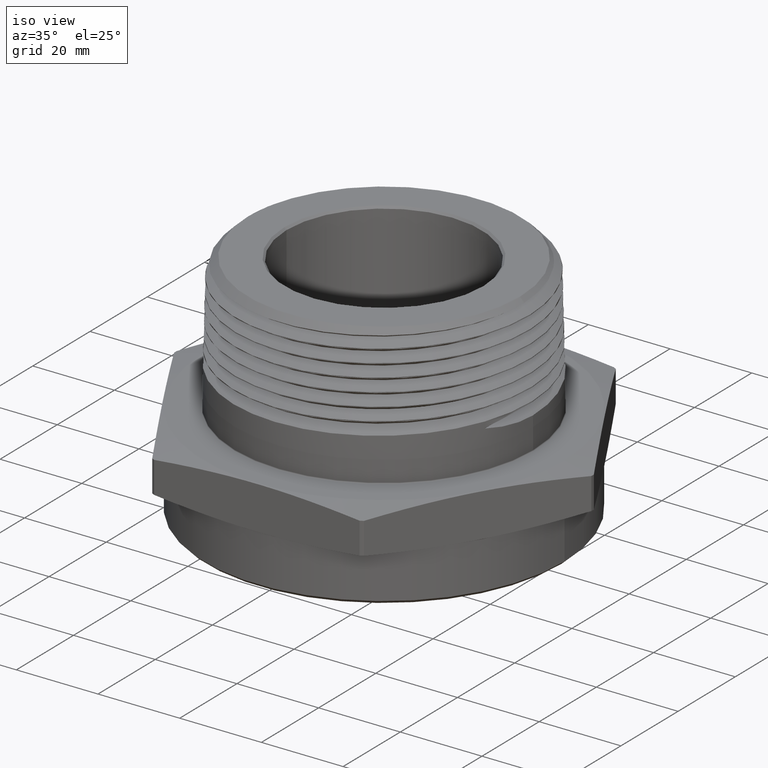
[diagram: clean part render]
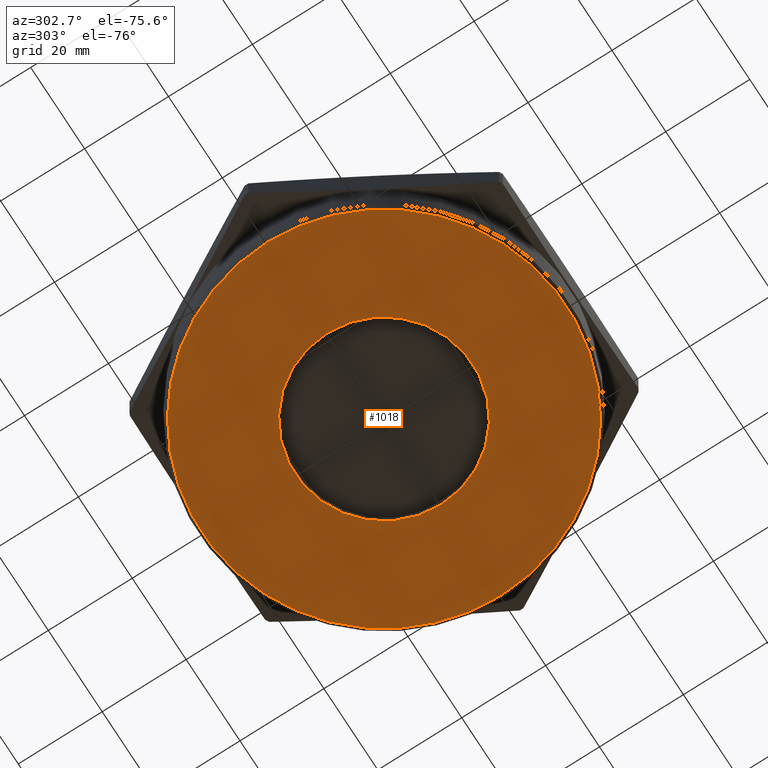
[diagram: tour spotlight — one face highlighted and labeled with its STEP entity id]
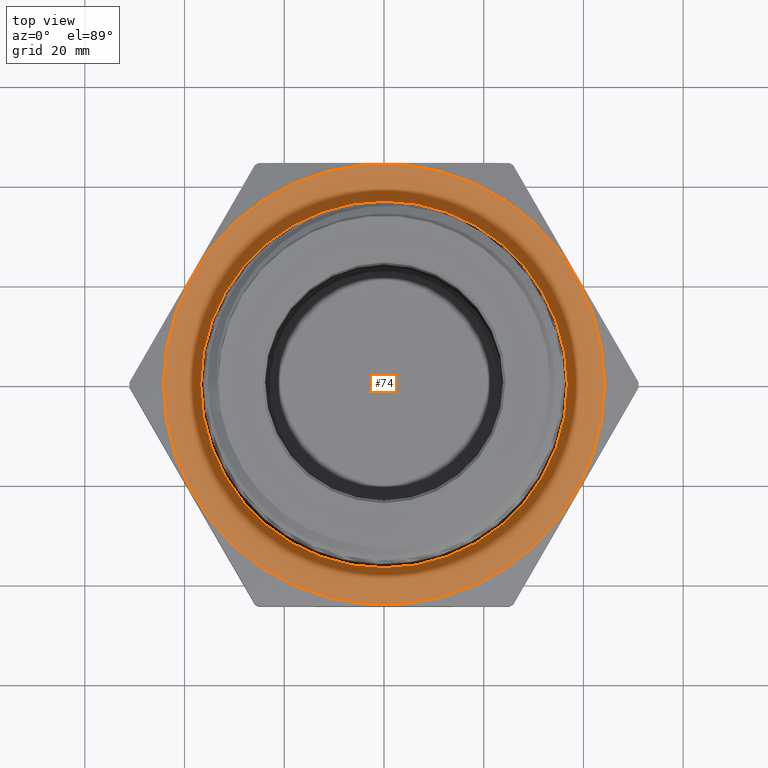
[diagram: tour spotlight — one face highlighted and labeled with its STEP entity id]
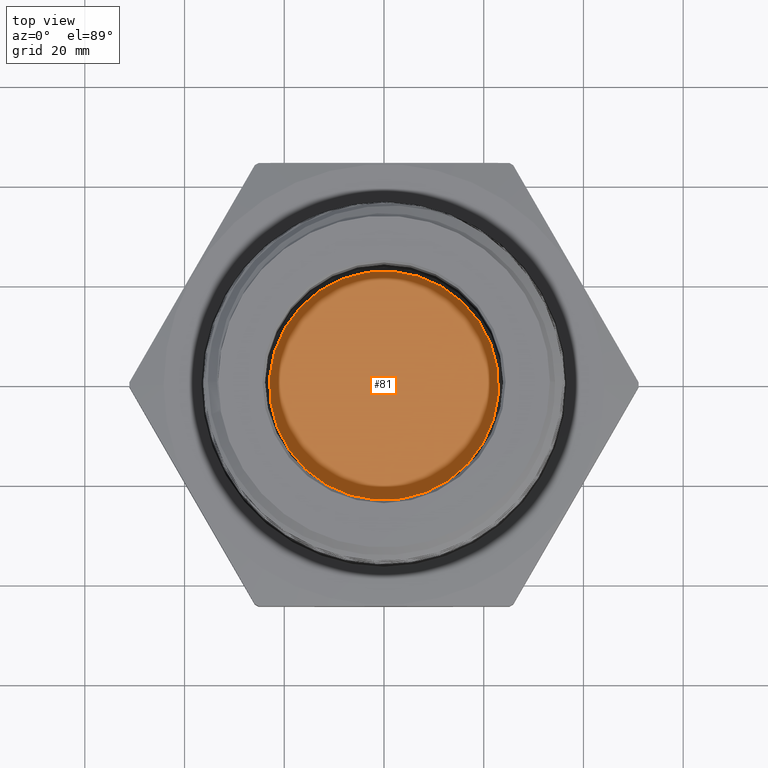
[diagram: tour spotlight — one face highlighted and labeled with its STEP entity id]
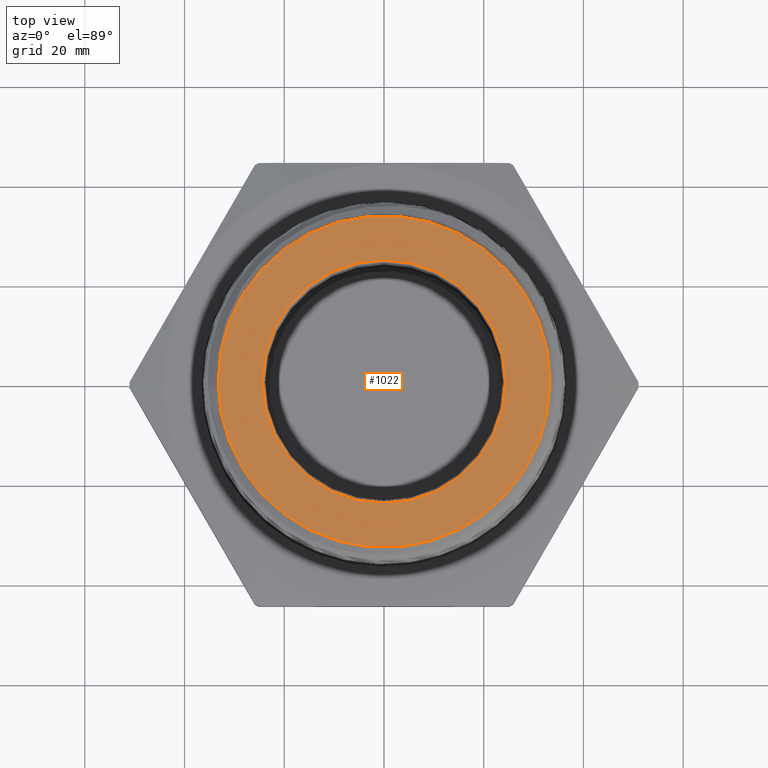
[diagram: tour spotlight — one face highlighted and labeled with its STEP entity id]
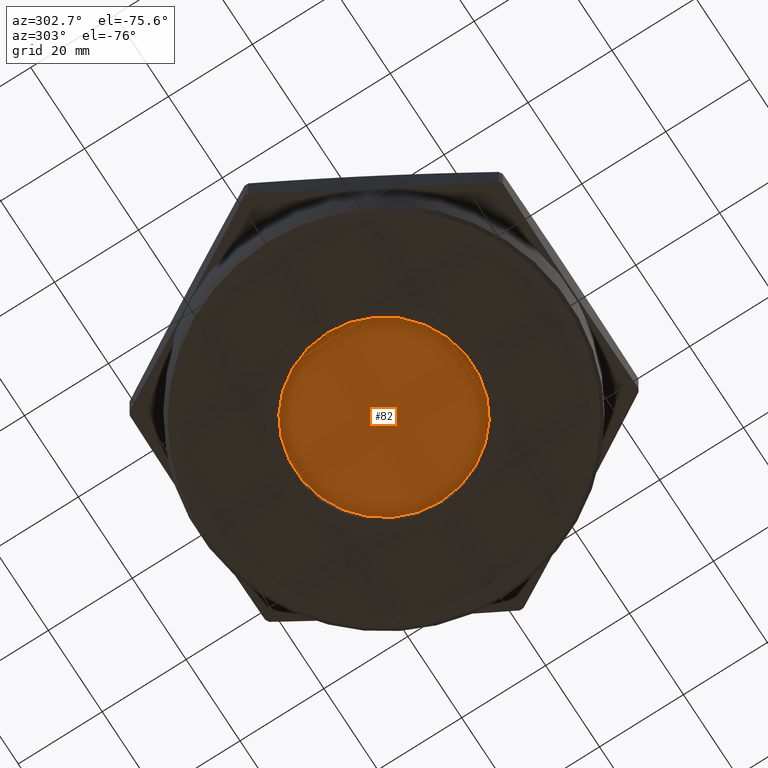
[diagram: tour spotlight — one face highlighted and labeled with its STEP entity id]
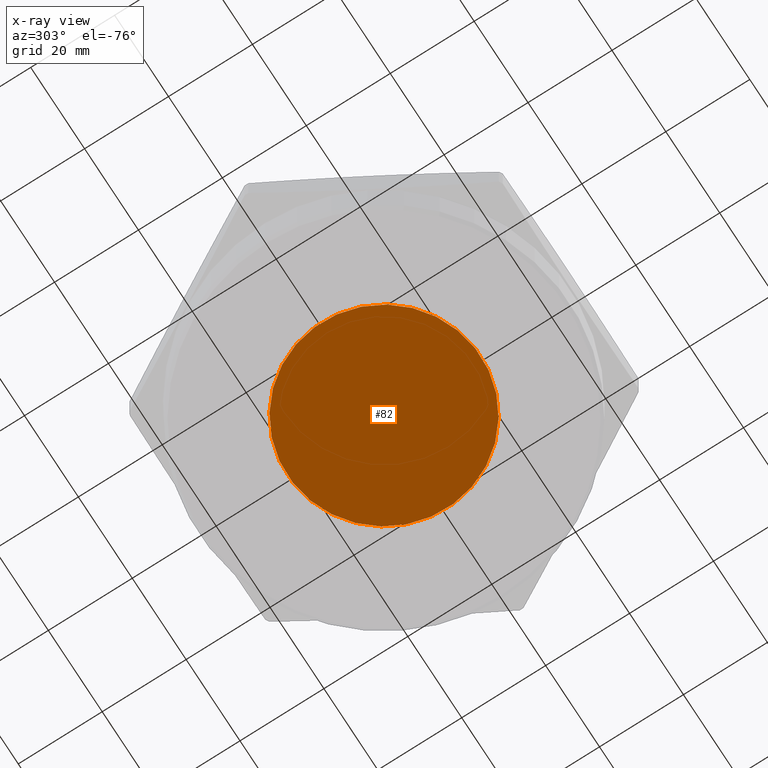
[diagram: x-ray of the same camera — body ghosted, this tour face saturated]
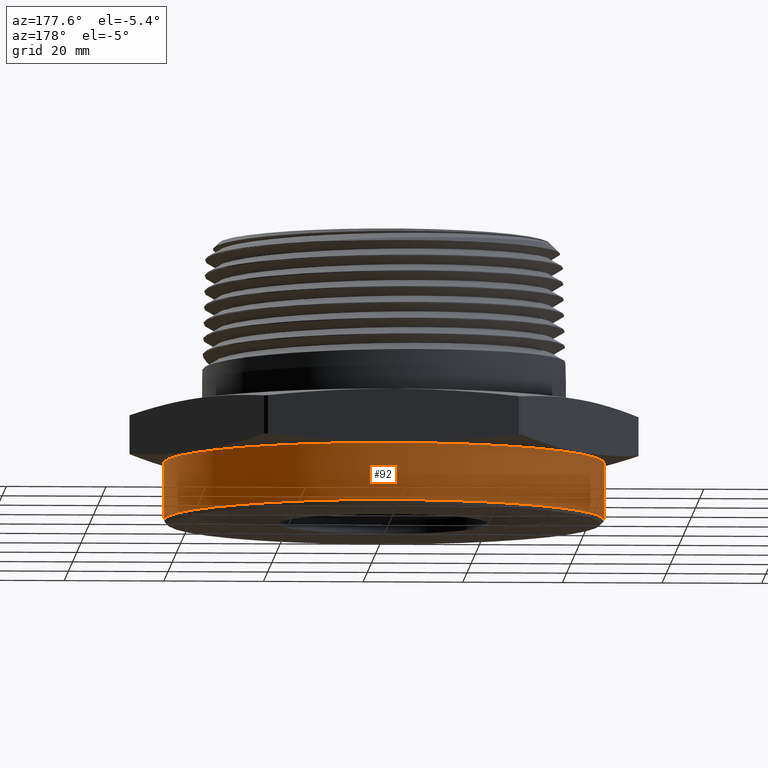
[diagram: tour spotlight — one face highlighted and labeled with its STEP entity id]
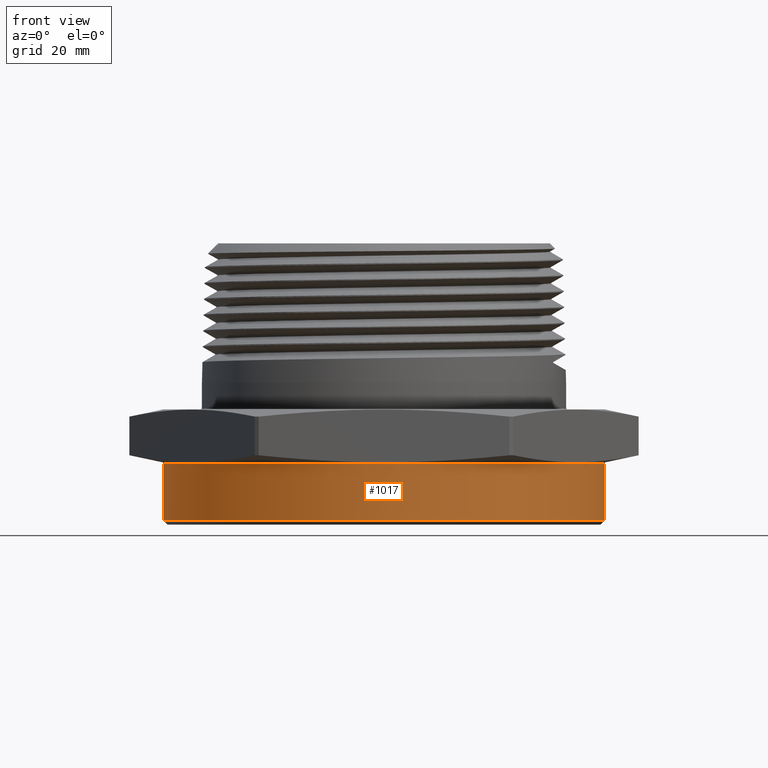
[diagram: tour spotlight — one face highlighted and labeled with its STEP entity id]
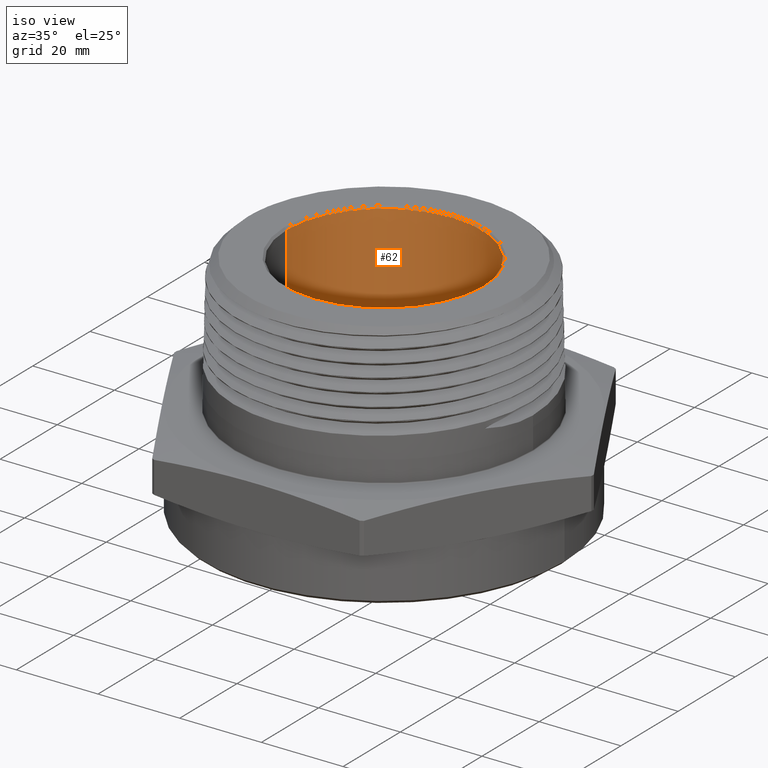
[diagram: tour spotlight — one face highlighted and labeled with its STEP entity id]
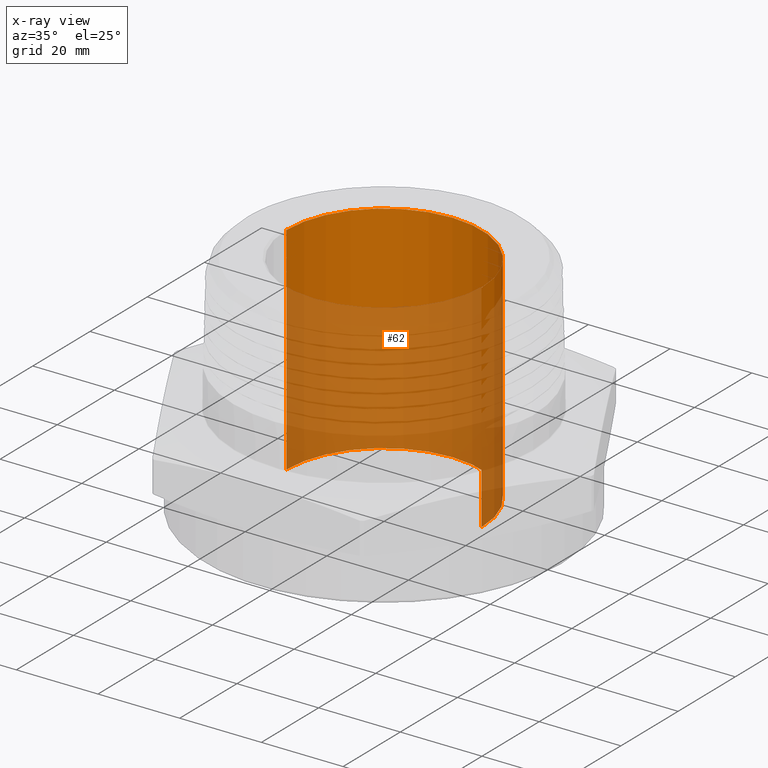
[diagram: x-ray of the same camera — body ghosted, this tour face saturated]
A machine part: a face-by-face anatomy tour. The part has 71 B-rep faces; the first image is the clean iso view, then the 8 largest visible faces are spotlighted one at a time (largest first), each with its STEP entity span.

Face 1 — auxiliary view, entity #1018. In plain terms, the highlighted planar face has unit normal (0, 0, -1).
Definition (entity closure, byte-faithful):
#137 = AXIS2_PLACEMENT_3D ( 'NONE', #3642, #3641, #3646 ) ;
#142 = AXIS2_PLACEMENT_3D ( 'NONE', #3663, #3664, #3665 ) ;
#143 = AXIS2_PLACEMENT_3D ( 'NONE', #3666, #3667, #3668 ) ;
#149 = AXIS2_PLACEMENT_3D ( 'NONE', #6822, #6823, #6824 ) ;
#150 = AXIS2_PLACEMENT_3D ( 'NONE', #6825, #6826, #6827 ) ;
#1018 = ADVANCED_FACE ( 'NONE', ( #2717, #2725 ), #3644, .T. ) ;
#2388 = EDGE_CURVE ( 'NONE', #6313, #6325, #2729, .T. ) ;
#2389 = EDGE_CURVE ( 'NONE', #6303, #2501, #2731, .T. ) ;
#2501 = VERTEX_POINT ( 'NONE', #3711 ) ;
#2717 = FACE_BOUND ( 'NONE', #8040, .T. ) ;
#2725 = FACE_OUTER_BOUND ( 'NONE', #8042, .T. ) ;
#2729 = CIRCLE ( 'NONE', #142, 0.8320000000000000700 ) ;
#2731 = CIRCLE ( 'NONE', #143, 1.710000000000000000 ) ;
#2756 = CIRCLE ( 'NONE', #149, 0.8320000000000000700 ) ;
#2758 = CIRCLE ( 'NONE', #150, 1.710000000000000000 ) ;
#3013 = EDGE_CURVE ( 'NONE', #6325, #6313, #2756, .T. ) ;
#3015 = EDGE_CURVE ( 'NONE', #2501, #6303, #2758, .T. ) ;
#3641 = DIRECTION ( 'NONE',  ( 0.0000000000000000000, 0.0000000000000000000, -1.000000000000000000 ) ) ;
#3642 = CARTESIAN_POINT ( 'NONE',  ( 0.0000000000000000000, 0.0000000000000000000, -0.4899999999999999900 ) ) ;
#3644 = PLANE ( 'NONE',  #137 ) ;
#3646 = DIRECTION ( 'NONE',  ( -1.000000000000000000, 0.0000000000000000000, -0.0000000000000000000 ) ) ;
#3663 = CARTESIAN_POINT ( 'NONE',  ( 4.898587196589199400E-018, 0.0000000000000000000, -0.4899999999999999900 ) ) ;
#3664 = DIRECTION ( 'NONE',  ( 3.597279148836485100E-018, -0.0000000000000000000, -1.000000000000000000 ) ) ;
#3665 = DIRECTION ( 'NONE',  ( -1.000000000000000000, 0.0000000000000000000, 0.0000000000000000000 ) ) ;
#3666 = CARTESIAN_POINT ( 'NONE',  ( 0.0000000000000000000, 0.0000000000000000000, -0.4899999999999999900 ) ) ;
#3667 = DIRECTION ( 'NONE',  ( 0.0000000000000000000, 0.0000000000000000000, -1.000000000000000000 ) ) ;
#3668 = DIRECTION ( 'NONE',  ( -1.000000000000000000, 0.0000000000000000000, 0.0000000000000000000 ) ) ;
#3711 = CARTESIAN_POINT ( 'NONE',  ( -1.710000000000000000, 2.112515728529184400E-016, -0.4899999999999999900 ) ) ;
#4406 = CARTESIAN_POINT ( 'NONE',  ( 1.710000000000000000, 0.0000000000000000000, -0.4899999999999999900 ) ) ;
#4432 = CARTESIAN_POINT ( 'NONE',  ( -0.8320000000000000700, 0.0000000000000000000, -0.4899999999999999900 ) ) ;
#4444 = CARTESIAN_POINT ( 'NONE',  ( 0.8320000000000000700, 1.018906136890598000E-016, -0.4899999999999999900 ) ) ;
#6303 = VERTEX_POINT ( 'NONE', #4406 ) ;
#6313 = VERTEX_POINT ( 'NONE', #4432 ) ;
#6325 = VERTEX_POINT ( 'NONE', #4444 ) ;
#6822 = CARTESIAN_POINT ( 'NONE',  ( 4.898587196589199400E-018, 0.0000000000000000000, -0.4899999999999999900 ) ) ;
#6823 = DIRECTION ( 'NONE',  ( 3.597279148836485100E-018, -0.0000000000000000000, -1.000000000000000000 ) ) ;
#6824 = DIRECTION ( 'NONE',  ( -1.000000000000000000, 0.0000000000000000000, 0.0000000000000000000 ) ) ;
#6825 = CARTESIAN_POINT ( 'NONE',  ( 0.0000000000000000000, 0.0000000000000000000, -0.4899999999999999900 ) ) ;
#6826 = DIRECTION ( 'NONE',  ( 0.0000000000000000000, 0.0000000000000000000, -1.000000000000000000 ) ) ;
#6827 = DIRECTION ( 'NONE',  ( -1.000000000000000000, 0.0000000000000000000, 0.0000000000000000000 ) ) ;
#7953 = ORIENTED_EDGE ( 'NONE', *, *, #2388, .F. ) ;
#7954 = ORIENTED_EDGE ( 'NONE', *, *, #3013, .F. ) ;
#7955 = ORIENTED_EDGE ( 'NONE', *, *, #2389, .T. ) ;
#7956 = ORIENTED_EDGE ( 'NONE', *, *, #3015, .T. ) ;
#8040 = EDGE_LOOP ( 'NONE', ( #7953, #7954 ) ) ;
#8042 = EDGE_LOOP ( 'NONE', ( #7955, #7956 ) ) ;

Face 2 — top view, entity #74. In plain terms, the highlighted planar face has unit normal (0, 0, 1).
Definition (entity closure, byte-faithful):
#74 = ADVANCED_FACE ( 'NONE', ( #8098, #8102 ), #3479, .T. ) ;
#154 = AXIS2_PLACEMENT_3D ( 'NONE', #6839, #6840, #6841 ) ;
#166 = AXIS2_PLACEMENT_3D ( 'NONE', #6914, #6915, #6916 ) ;
#191 = AXIS2_PLACEMENT_3D ( 'NONE', #5734, #5735, #5736 ) ;
#957 = CIRCLE ( 'NONE', #191, 1.739999999999999800 ) ;
#2408 = AXIS2_PLACEMENT_3D ( 'NONE', #3477, #3476, #3481 ) ;
#2439 = AXIS2_PLACEMENT_3D ( 'NONE', #4948, #4949, #4950 ) ;
#2766 = CIRCLE ( 'NONE', #154, 1.447499999999999800 ) ;
#2785 = CIRCLE ( 'NONE', #166, 1.739999999999999800 ) ;
#2801 = CIRCLE ( 'NONE', #2439, 1.447499999999999800 ) ;
#3021 = EDGE_CURVE ( 'NONE', #6323, #6425, #2766, .T. ) ;
#3040 = EDGE_CURVE ( 'NONE', #6292, #6322, #2785, .T. ) ;
#3476 = DIRECTION ( 'NONE',  ( -0.0000000000000000000, 0.0000000000000000000, 1.000000000000000000 ) ) ;
#3477 = CARTESIAN_POINT ( 'NONE',  ( -1.010362971081845100, -1.749999999999999600, 0.4199999999999999800 ) ) ;
#3479 = PLANE ( 'NONE',  #2408 ) ;
#3481 = DIRECTION ( 'NONE',  ( 1.000000000000000000, 0.0000000000000000000, 0.0000000000000000000 ) ) ;
#4414 = CARTESIAN_POINT ( 'NONE',  ( -1.739999999999999800, 0.0000000000000000000, 0.4199999999999999800 ) ) ;
#4441 = CARTESIAN_POINT ( 'NONE',  ( 1.739999999999999800, 2.130885430516394300E-016, 0.4199999999999995400 ) ) ;
#4442 = CARTESIAN_POINT ( 'NONE',  ( 1.447499999999999800, 0.0000000000000000000, 0.4200000000000000400 ) ) ;
#4455 = CARTESIAN_POINT ( 'NONE',  ( -1.447499999999999800, 1.772676241765793500E-016, 0.4200000000000000400 ) ) ;
#4948 = CARTESIAN_POINT ( 'NONE',  ( 0.0000000000000000000, 0.0000000000000000000, 0.4199999999999999800 ) ) ;
#4949 = DIRECTION ( 'NONE',  ( 0.0000000000000000000, -0.0000000000000000000, -1.000000000000000000 ) ) ;
#4950 = DIRECTION ( 'NONE',  ( 1.000000000000000000, 0.0000000000000000000, 0.0000000000000000000 ) ) ;
#5734 = CARTESIAN_POINT ( 'NONE',  ( 5.270943501400011200E-017, 0.0000000000000000000, 0.4199999999999997600 ) ) ;
#5735 = DIRECTION ( 'NONE',  ( -1.254986547952384500E-016, -0.0000000000000000000, -1.000000000000000000 ) ) ;
#5736 = DIRECTION ( 'NONE',  ( -1.000000000000000000, 0.0000000000000000000, 1.177520686924251500E-016 ) ) ;
#6265 = ORIENTED_EDGE ( 'NONE', *, *, #3021, .T. ) ;
#6266 = ORIENTED_EDGE ( 'NONE', *, *, #6450, .T. ) ;
#6267 = ORIENTED_EDGE ( 'NONE', *, *, #3040, .F. ) ;
#6268 = ORIENTED_EDGE ( 'NONE', *, *, #6556, .F. ) ;
#6292 = VERTEX_POINT ( 'NONE', #4414 ) ;
#6322 = VERTEX_POINT ( 'NONE', #4441 ) ;
#6323 = VERTEX_POINT ( 'NONE', #4442 ) ;
#6412 = EDGE_LOOP ( 'NONE', ( #6267, #6268 ) ) ;
#6414 = EDGE_LOOP ( 'NONE', ( #6265, #6266 ) ) ;
#6425 = VERTEX_POINT ( 'NONE', #4455 ) ;
#6450 = EDGE_CURVE ( 'NONE', #6425, #6323, #2801, .T. ) ;
#6556 = EDGE_CURVE ( 'NONE', #6322, #6292, #957, .T. ) ;
#6839 = CARTESIAN_POINT ( 'NONE',  ( 0.0000000000000000000, 0.0000000000000000000, 0.4199999999999999800 ) ) ;
#6840 = DIRECTION ( 'NONE',  ( 0.0000000000000000000, -0.0000000000000000000, -1.000000000000000000 ) ) ;
#6841 = DIRECTION ( 'NONE',  ( 1.000000000000000000, 0.0000000000000000000, 0.0000000000000000000 ) ) ;
#6914 = CARTESIAN_POINT ( 'NONE',  ( 5.270943501400011200E-017, 0.0000000000000000000, 0.4199999999999997600 ) ) ;
#6915 = DIRECTION ( 'NONE',  ( -1.254986547952384500E-016, -0.0000000000000000000, -1.000000000000000000 ) ) ;
#6916 = DIRECTION ( 'NONE',  ( -1.000000000000000000, 0.0000000000000000000, 1.177520686924251500E-016 ) ) ;
#8098 = FACE_BOUND ( 'NONE', #6414, .T. ) ;
#8102 = FACE_OUTER_BOUND ( 'NONE', #6412, .T. ) ;

Face 3 — top view, entity #81. In plain terms, the highlighted planar face has unit normal (0, 0, 1).
Definition (entity closure, byte-faithful):
#81 = ADVANCED_FACE ( 'NONE', ( #8108 ), #3500, .T. ) ;
#174 = AXIS2_PLACEMENT_3D ( 'NONE', #4967, #4968, #4969 ) ;
#177 = AXIS2_PLACEMENT_3D ( 'NONE', #4980, #4981, #4982 ) ;
#2414 = AXIS2_PLACEMENT_3D ( 'NONE', #3498, #3502, #3503 ) ;
#2504 = VERTEX_POINT ( 'NONE', #3714 ) ;
#2507 = VERTEX_POINT ( 'NONE', #3717 ) ;
#2807 = CIRCLE ( 'NONE', #174, 0.9050000000000078000 ) ;
#2819 = CIRCLE ( 'NONE', #177, 0.9050000000000078000 ) ;
#3498 = CARTESIAN_POINT ( 'NONE',  ( 0.0000000000000000000, 0.0000000000000000000, 0.2755905511811023700 ) ) ;
#3500 = PLANE ( 'NONE',  #2414 ) ;
#3502 = DIRECTION ( 'NONE',  ( 0.0000000000000000000, -0.0000000000000000000, 1.000000000000000000 ) ) ;
#3503 = DIRECTION ( 'NONE',  ( 1.000000000000000000, 5.551115123125733400E-017, 0.0000000000000000000 ) ) ;
#3714 = CARTESIAN_POINT ( 'NONE',  ( -0.7196169239598464400, -0.6095117751713916600, 0.2755905511811023700 ) ) ;
#3717 = CARTESIAN_POINT ( 'NONE',  ( 1.090383076040169200, -0.6095117751713914300, 0.2755905511811023700 ) ) ;
#4967 = CARTESIAN_POINT ( 'NONE',  ( 0.1853830760401613500, -0.6095117751713916600, 0.2755905511811023700 ) ) ;
#4968 = DIRECTION ( 'NONE',  ( 0.0000000000000000000, 0.0000000000000000000, 1.000000000000000000 ) ) ;
#4969 = DIRECTION ( 'NONE',  ( 1.000000000000000000, 0.0000000000000000000, 0.0000000000000000000 ) ) ;
#4980 = CARTESIAN_POINT ( 'NONE',  ( 0.1853830760401613500, -0.6095117751713916600, 0.2755905511811023700 ) ) ;
#4981 = DIRECTION ( 'NONE',  ( 0.0000000000000000000, 0.0000000000000000000, 1.000000000000000000 ) ) ;
#4982 = DIRECTION ( 'NONE',  ( 1.000000000000000000, 0.0000000000000000000, 0.0000000000000000000 ) ) ;
#6456 = EDGE_CURVE ( 'NONE', #2507, #2504, #2807, .T. ) ;
#6462 = EDGE_CURVE ( 'NONE', #2504, #2507, #2819, .T. ) ;
#8015 = EDGE_LOOP ( 'NONE', ( #8026, #8025 ) ) ;
#8025 = ORIENTED_EDGE ( 'NONE', *, *, #6456, .T. ) ;
#8026 = ORIENTED_EDGE ( 'NONE', *, *, #6462, .T. ) ;
#8108 = FACE_OUTER_BOUND ( 'NONE', #8015, .T. ) ;

Face 4 — top view, entity #1022. In plain terms, the highlighted planar face has unit normal (0, 0, 1).
Definition (entity closure, byte-faithful):
#141 = AXIS2_PLACEMENT_3D ( 'NONE', #3655, #3654, #3657 ) ;
#144 = AXIS2_PLACEMENT_3D ( 'NONE', #3669, #273, #3687 ) ;
#183 = AXIS2_PLACEMENT_3D ( 'NONE', #5407, #5408, #5409 ) ;
#184 = AXIS2_PLACEMENT_3D ( 'NONE', #5479, #5480, #5481 ) ;
#200 = AXIS2_PLACEMENT_3D ( 'NONE', #5787, #5788, #5789 ) ;
#273 = DIRECTION ( 'NONE',  ( 3.597279148836485100E-018, -0.0000000000000000000, -1.000000000000000000 ) ) ;
#927 = CIRCLE ( 'NONE', #183, 1.309765000000000100 ) ;
#929 = CIRCLE ( 'NONE', #184, 1.309765000000000100 ) ;
#990 = CIRCLE ( 'NONE', #200, 0.9599999999999994100 ) ;
#1022 = ADVANCED_FACE ( 'NONE', ( #2694, #2723 ), #3656, .T. ) ;
#2390 = EDGE_CURVE ( 'NONE', #2492, #2493, #2733, .T. ) ;
#2492 = VERTEX_POINT ( 'NONE', #3706 ) ;
#2493 = VERTEX_POINT ( 'NONE', #3704 ) ;
#2694 = FACE_BOUND ( 'NONE', #8044, .T. ) ;
#2723 = FACE_OUTER_BOUND ( 'NONE', #8031, .T. ) ;
#2733 = CIRCLE ( 'NONE', #144, 0.9599999999999994100 ) ;
#3654 = DIRECTION ( 'NONE',  ( 0.0000000000000000000, 0.0000000000000000000, 1.000000000000000000 ) ) ;
#3655 = CARTESIAN_POINT ( 'NONE',  ( 0.0000000000000000000, 0.0000000000000000000, 1.729999999999999800 ) ) ;
#3656 = PLANE ( 'NONE',  #141 ) ;
#3657 = DIRECTION ( 'NONE',  ( 1.000000000000000000, 0.0000000000000000000, -0.0000000000000000000 ) ) ;
#3669 = CARTESIAN_POINT ( 'NONE',  ( -3.087372513827796600E-018, 0.0000000000000000000, 1.729999999999999800 ) ) ;
#3687 = DIRECTION ( 'NONE',  ( -1.000000000000000000, 0.0000000000000000000, 0.0000000000000000000 ) ) ;
#3704 = CARTESIAN_POINT ( 'NONE',  ( 0.9599999999999994100, 0.0000000000000000000, 1.729999999999999800 ) ) ;
#3706 = CARTESIAN_POINT ( 'NONE',  ( -0.9599999999999994100, 1.175660927181458400E-016, 1.729999999999999800 ) ) ;
#4452 = CARTESIAN_POINT ( 'NONE',  ( 1.309765000000000100, 1.653900943077713700E-016, 1.729999999999999800 ) ) ;
#4460 = CARTESIAN_POINT ( 'NONE',  ( -1.309765000000000100, 0.0000000000000000000, 1.729999999999999800 ) ) ;
#5407 = CARTESIAN_POINT ( 'NONE',  ( 0.0000000000000000000, 0.0000000000000000000, 1.729999999999999800 ) ) ;
#5408 = DIRECTION ( 'NONE',  ( -0.0000000000000000000, -0.0000000000000000000, -1.000000000000000000 ) ) ;
#5409 = DIRECTION ( 'NONE',  ( -1.000000000000000000, 0.0000000000000000000, 0.0000000000000000000 ) ) ;
#5479 = CARTESIAN_POINT ( 'NONE',  ( 0.0000000000000000000, 0.0000000000000000000, 1.729999999999999800 ) ) ;
#5480 = DIRECTION ( 'NONE',  ( -0.0000000000000000000, -0.0000000000000000000, -1.000000000000000000 ) ) ;
#5481 = DIRECTION ( 'NONE',  ( -1.000000000000000000, 0.0000000000000000000, 0.0000000000000000000 ) ) ;
#5787 = CARTESIAN_POINT ( 'NONE',  ( -3.087372513827796600E-018, 0.0000000000000000000, 1.729999999999999800 ) ) ;
#5788 = DIRECTION ( 'NONE',  ( 3.597279148836485100E-018, -0.0000000000000000000, -1.000000000000000000 ) ) ;
#5789 = DIRECTION ( 'NONE',  ( -1.000000000000000000, 0.0000000000000000000, 0.0000000000000000000 ) ) ;
#6369 = ORIENTED_EDGE ( 'NONE', *, *, #6577, .T. ) ;
#6370 = ORIENTED_EDGE ( 'NONE', *, *, #2390, .T. ) ;
#6371 = ORIENTED_EDGE ( 'NONE', *, *, #6485, .F. ) ;
#6372 = ORIENTED_EDGE ( 'NONE', *, *, #6490, .F. ) ;
#6431 = VERTEX_POINT ( 'NONE', #4460 ) ;
#6432 = VERTEX_POINT ( 'NONE', #4452 ) ;
#6485 = EDGE_CURVE ( 'NONE', #6431, #6432, #927, .T. ) ;
#6490 = EDGE_CURVE ( 'NONE', #6432, #6431, #929, .T. ) ;
#6577 = EDGE_CURVE ( 'NONE', #2493, #2492, #990, .T. ) ;
#8031 = EDGE_LOOP ( 'NONE', ( #6371, #6372 ) ) ;
#8044 = EDGE_LOOP ( 'NONE', ( #6369, #6370 ) ) ;

Face 5 — auxiliary view, entity #82. An x-ray twin of the same camera follows (body ghosted, this face saturated) — the face is partly hidden behind the body. In plain terms, the highlighted planar face has unit normal (0, 0, 1).
Definition (entity closure, byte-faithful):
#82 = ADVANCED_FACE ( 'NONE', ( #8103 ), #3499, .F. ) ;
#173 = AXIS2_PLACEMENT_3D ( 'NONE', #4960, #4961, #4962 ) ;
#178 = AXIS2_PLACEMENT_3D ( 'NONE', #4983, #4984, #4985 ) ;
#2416 = AXIS2_PLACEMENT_3D ( 'NONE', #3501, #3506, #3507 ) ;
#2506 = VERTEX_POINT ( 'NONE', #3716 ) ;
#2508 = VERTEX_POINT ( 'NONE', #3718 ) ;
#2805 = CIRCLE ( 'NONE', #173, 0.9050000000000084600 ) ;
#2820 = CIRCLE ( 'NONE', #178, 0.9050000000000084600 ) ;
#3499 = PLANE ( 'NONE',  #2416 ) ;
#3501 = CARTESIAN_POINT ( 'NONE',  ( 0.0000000000000000000, 0.0000000000000000000, 0.0000000000000000000 ) ) ;
#3506 = DIRECTION ( 'NONE',  ( 0.0000000000000000000, -0.0000000000000000000, 1.000000000000000000 ) ) ;
#3507 = DIRECTION ( 'NONE',  ( 1.000000000000000000, 5.551115123125733400E-017, 0.0000000000000000000 ) ) ;
#3716 = CARTESIAN_POINT ( 'NONE',  ( -0.7196169239598471100, -0.6095117751713914300, 0.0000000000000000000 ) ) ;
#3718 = CARTESIAN_POINT ( 'NONE',  ( 1.090383076040169800, -0.6095117751713916600, 0.0000000000000000000 ) ) ;
#4960 = CARTESIAN_POINT ( 'NONE',  ( 0.1853830760401613500, -0.6095117751713916600, 0.0000000000000000000 ) ) ;
#4961 = DIRECTION ( 'NONE',  ( -0.0000000000000000000, -0.0000000000000000000, -1.000000000000000000 ) ) ;
#4962 = DIRECTION ( 'NONE',  ( 1.000000000000000000, 0.0000000000000000000, 0.0000000000000000000 ) ) ;
#4983 = CARTESIAN_POINT ( 'NONE',  ( 0.1853830760401613500, -0.6095117751713916600, 0.0000000000000000000 ) ) ;
#4984 = DIRECTION ( 'NONE',  ( -0.0000000000000000000, -0.0000000000000000000, -1.000000000000000000 ) ) ;
#4985 = DIRECTION ( 'NONE',  ( 1.000000000000000000, 0.0000000000000000000, 0.0000000000000000000 ) ) ;
#6453 = EDGE_CURVE ( 'NONE', #2506, #2508, #2805, .T. ) ;
#6463 = EDGE_CURVE ( 'NONE', #2508, #2506, #2820, .T. ) ;
#8021 = EDGE_LOOP ( 'NONE', ( #8027, #8028 ) ) ;
#8027 = ORIENTED_EDGE ( 'NONE', *, *, #6463, .T. ) ;
#8028 = ORIENTED_EDGE ( 'NONE', *, *, #6453, .T. ) ;
#8103 = FACE_OUTER_BOUND ( 'NONE', #8021, .T. ) ;

Face 6 — auxiliary view, entity #92. In plain terms, the highlighted cylindrical surface (partial cylindrical patch) has radius 44.196 mm, axis along (0, 0, 1).
Definition (entity closure, byte-faithful):
#15 = ORIENTED_EDGE ( 'NONE', *, *, #3028, .T. ) ;
#16 = ORIENTED_EDGE ( 'NONE', *, *, #3027, .T. ) ;
#17 = ORIENTED_EDGE ( 'NONE', *, *, #3017, .T. ) ;
#24 = ORIENTED_EDGE ( 'NONE', *, *, #3029, .F. ) ;
#92 = ADVANCED_FACE ( 'NONE', ( #8135 ), #8137, .T. ) ;
#151 = AXIS2_PLACEMENT_3D ( 'NONE', #6830, #6831, #6832 ) ;
#160 = AXIS2_PLACEMENT_3D ( 'NONE', #6862, #6863, #6864 ) ;
#2427 = AXIS2_PLACEMENT_3D ( 'NONE', #3534, #3535, #3532 ) ;
#2755 = CIRCLE ( 'NONE', #151, 1.739999999999999800 ) ;
#2772 = LINE ( 'NONE', #6857, #2775 ) ;
#2774 = CIRCLE ( 'NONE', #160, 1.739999999999999800 ) ;
#2775 = VECTOR ( 'NONE', #6846, 39.37007874015748100 ) ;
#2776 = LINE ( 'NONE', #6842, #2778 ) ;
#2778 = VECTOR ( 'NONE', #6856, 39.37007874015748100 ) ;
#3017 = EDGE_CURVE ( 'NONE', #6331, #6433, #2755, .T. ) ;
#3027 = EDGE_CURVE ( 'NONE', #6433, #6319, #2772, .T. ) ;
#3028 = EDGE_CURVE ( 'NONE', #6319, #6293, #2774, .T. ) ;
#3029 = EDGE_CURVE ( 'NONE', #6331, #6293, #2776, .T. ) ;
#3532 = DIRECTION ( 'NONE',  ( 1.000000000000000000, 0.0000000000000000000, 0.0000000000000000000 ) ) ;
#3534 = CARTESIAN_POINT ( 'NONE',  ( 0.0000000000000000000, 0.0000000000000000000, -0.4899999999999999900 ) ) ;
#3535 = DIRECTION ( 'NONE',  ( -0.0000000000000000000, -0.0000000000000000000, 1.000000000000000000 ) ) ;
#4415 = CARTESIAN_POINT ( 'NONE',  ( 1.739999999999999800, 0.0000000000000000000, -0.008097840331950717200 ) ) ;
#4438 = CARTESIAN_POINT ( 'NONE',  ( -1.739999999999999800, 2.130885430516394300E-016, -0.008097840331950498600 ) ) ;
#4450 = CARTESIAN_POINT ( 'NONE',  ( 1.739999999999999800, 0.0000000000000000000, -0.4599999999999997400 ) ) ;
#4461 = CARTESIAN_POINT ( 'NONE',  ( -1.739999999999999800, 2.130885430516394300E-016, -0.4599999999999997400 ) ) ;
#6293 = VERTEX_POINT ( 'NONE', #4415 ) ;
#6319 = VERTEX_POINT ( 'NONE', #4438 ) ;
#6331 = VERTEX_POINT ( 'NONE', #4450 ) ;
#6433 = VERTEX_POINT ( 'NONE', #4461 ) ;
#6830 = CARTESIAN_POINT ( 'NONE',  ( 0.0000000000000000000, 0.0000000000000000000, -0.4599999999999997400 ) ) ;
#6831 = DIRECTION ( 'NONE',  ( 0.0000000000000000000, 0.0000000000000000000, 1.000000000000000000 ) ) ;
#6832 = DIRECTION ( 'NONE',  ( -1.000000000000000000, 0.0000000000000000000, 0.0000000000000000000 ) ) ;
#6842 = CARTESIAN_POINT ( 'NONE',  ( 1.739999999999999800, 0.0000000000000000000, -0.4899999999999999900 ) ) ;
#6846 = DIRECTION ( 'NONE',  ( -0.0000000000000000000, -0.0000000000000000000, 1.000000000000000000 ) ) ;
#6856 = DIRECTION ( 'NONE',  ( -0.0000000000000000000, -0.0000000000000000000, 1.000000000000000000 ) ) ;
#6857 = CARTESIAN_POINT ( 'NONE',  ( -1.739999999999999800, 2.130885430516394300E-016, -0.4899999999999999900 ) ) ;
#6862 = CARTESIAN_POINT ( 'NONE',  ( 0.0000000000000000000, 0.0000000000000000000, -0.008097840331950607900 ) ) ;
#6863 = DIRECTION ( 'NONE',  ( -6.274932739761922300E-017, -0.0000000000000000000, -1.000000000000000000 ) ) ;
#6864 = DIRECTION ( 'NONE',  ( -1.000000000000000000, 0.0000000000000000000, 6.255578649285086100E-017 ) ) ;
#8135 = FACE_OUTER_BOUND ( 'NONE', #8177, .T. ) ;
#8137 = CYLINDRICAL_SURFACE ( 'NONE', #2427, 1.739999999999999800 ) ;
#8177 = EDGE_LOOP ( 'NONE', ( #17, #16, #15, #24 ) ) ;

Face 7 — front view, entity #1017. In plain terms, the highlighted cylindrical surface (partial cylindrical patch) has radius 44.196 mm, axis along (0, 0, 1).
Definition (entity closure, byte-faithful):
#136 = AXIS2_PLACEMENT_3D ( 'NONE', #3640, #3636, #3637 ) ;
#140 = AXIS2_PLACEMENT_3D ( 'NONE', #3660, #3661, #3662 ) ;
#156 = AXIS2_PLACEMENT_3D ( 'NONE', #6847, #6848, #6849 ) ;
#1017 = ADVANCED_FACE ( 'NONE', ( #2721 ), #2724, .T. ) ;
#2387 = EDGE_CURVE ( 'NONE', #6433, #6331, #2732, .T. ) ;
#2721 = FACE_OUTER_BOUND ( 'NONE', #8048, .T. ) ;
#2724 = CYLINDRICAL_SURFACE ( 'NONE', #136, 1.739999999999999800 ) ;
#2732 = CIRCLE ( 'NONE', #140, 1.739999999999999800 ) ;
#2768 = CIRCLE ( 'NONE', #156, 1.739999999999999800 ) ;
#2772 = LINE ( 'NONE', #6857, #2775 ) ;
#2775 = VECTOR ( 'NONE', #6846, 39.37007874015748100 ) ;
#2776 = LINE ( 'NONE', #6842, #2778 ) ;
#2778 = VECTOR ( 'NONE', #6856, 39.37007874015748100 ) ;
#3023 = EDGE_CURVE ( 'NONE', #6293, #6319, #2768, .T. ) ;
#3027 = EDGE_CURVE ( 'NONE', #6433, #6319, #2772, .T. ) ;
#3029 = EDGE_CURVE ( 'NONE', #6331, #6293, #2776, .T. ) ;
#3636 = DIRECTION ( 'NONE',  ( -0.0000000000000000000, -0.0000000000000000000, 1.000000000000000000 ) ) ;
#3637 = DIRECTION ( 'NONE',  ( 1.000000000000000000, 0.0000000000000000000, 0.0000000000000000000 ) ) ;
#3640 = CARTESIAN_POINT ( 'NONE',  ( 0.0000000000000000000, 0.0000000000000000000, -0.4899999999999999900 ) ) ;
#3660 = CARTESIAN_POINT ( 'NONE',  ( 0.0000000000000000000, 0.0000000000000000000, -0.4599999999999997400 ) ) ;
#3661 = DIRECTION ( 'NONE',  ( 0.0000000000000000000, 0.0000000000000000000, 1.000000000000000000 ) ) ;
#3662 = DIRECTION ( 'NONE',  ( -1.000000000000000000, 0.0000000000000000000, 0.0000000000000000000 ) ) ;
#4415 = CARTESIAN_POINT ( 'NONE',  ( 1.739999999999999800, 0.0000000000000000000, -0.008097840331950717200 ) ) ;
#4438 = CARTESIAN_POINT ( 'NONE',  ( -1.739999999999999800, 2.130885430516394300E-016, -0.008097840331950498600 ) ) ;
#4450 = CARTESIAN_POINT ( 'NONE',  ( 1.739999999999999800, 0.0000000000000000000, -0.4599999999999997400 ) ) ;
#4461 = CARTESIAN_POINT ( 'NONE',  ( -1.739999999999999800, 2.130885430516394300E-016, -0.4599999999999997400 ) ) ;
#6293 = VERTEX_POINT ( 'NONE', #4415 ) ;
#6319 = VERTEX_POINT ( 'NONE', #4438 ) ;
#6331 = VERTEX_POINT ( 'NONE', #4450 ) ;
#6433 = VERTEX_POINT ( 'NONE', #4461 ) ;
#6842 = CARTESIAN_POINT ( 'NONE',  ( 1.739999999999999800, 0.0000000000000000000, -0.4899999999999999900 ) ) ;
#6846 = DIRECTION ( 'NONE',  ( -0.0000000000000000000, -0.0000000000000000000, 1.000000000000000000 ) ) ;
#6847 = CARTESIAN_POINT ( 'NONE',  ( 0.0000000000000000000, 0.0000000000000000000, -0.008097840331950607900 ) ) ;
#6848 = DIRECTION ( 'NONE',  ( -6.274932739761922300E-017, -0.0000000000000000000, -1.000000000000000000 ) ) ;
#6849 = DIRECTION ( 'NONE',  ( -1.000000000000000000, 0.0000000000000000000, 6.255578649285086100E-017 ) ) ;
#6856 = DIRECTION ( 'NONE',  ( -0.0000000000000000000, -0.0000000000000000000, 1.000000000000000000 ) ) ;
#6857 = CARTESIAN_POINT ( 'NONE',  ( -1.739999999999999800, 2.130885430516394300E-016, -0.4899999999999999900 ) ) ;
#7949 = ORIENTED_EDGE ( 'NONE', *, *, #3027, .F. ) ;
#7950 = ORIENTED_EDGE ( 'NONE', *, *, #2387, .T. ) ;
#7951 = ORIENTED_EDGE ( 'NONE', *, *, #3029, .T. ) ;
#7952 = ORIENTED_EDGE ( 'NONE', *, *, #3023, .T. ) ;
#8048 = EDGE_LOOP ( 'NONE', ( #7949, #7950, #7951, #7952 ) ) ;

Face 8 — iso view, entity #62. An x-ray twin of the same camera follows (body ghosted, this face saturated) — the face is partly hidden behind the body. In plain terms, the highlighted cylindrical surface (partial cylindrical patch) has radius 23.876 mm, axis along (0, 0, -1).
Definition (entity closure, byte-faithful):
#62 = ADVANCED_FACE ( 'NONE', ( #8079 ), #8085, .F. ) ;
#147 = AXIS2_PLACEMENT_3D ( 'NONE', #3694, #3695, #3696 ) ;
#148 = AXIS2_PLACEMENT_3D ( 'NONE', #3699, #3700, #3701 ) ;
#971 = LINE ( 'NONE', #5779, #989 ) ;
#983 = LINE ( 'NONE', #5775, #986 ) ;
#986 = VECTOR ( 'NONE', #5776, 39.37007874015748100 ) ;
#989 = VECTOR ( 'NONE', #5771, 39.37007874015748100 ) ;
#2393 = EDGE_CURVE ( 'NONE', #2495, #2510, #2737, .T. ) ;
#2394 = EDGE_CURVE ( 'NONE', #2502, #2498, #2738, .T. ) ;
#2399 = AXIS2_PLACEMENT_3D ( 'NONE', #5905, #5901, #5903 ) ;
#2495 = VERTEX_POINT ( 'NONE', #3697 ) ;
#2498 = VERTEX_POINT ( 'NONE', #3659 ) ;
#2502 = VERTEX_POINT ( 'NONE', #3712 ) ;
#2510 = VERTEX_POINT ( 'NONE', #3720 ) ;
#2737 = CIRCLE ( 'NONE', #147, 0.9399999999999997200 ) ;
#2738 = CIRCLE ( 'NONE', #148, 0.9399999999999998400 ) ;
#3659 = CARTESIAN_POINT ( 'NONE',  ( 0.9399999999999998400, 1.151167991198511700E-016, -0.3769999999999999500 ) ) ;
#3694 = CARTESIAN_POINT ( 'NONE',  ( -3.015426930851067000E-018, 0.0000000000000000000, 1.709999999999999700 ) ) ;
#3695 = DIRECTION ( 'NONE',  ( 3.597279148836485100E-018, -0.0000000000000000000, -1.000000000000000000 ) ) ;
#3696 = DIRECTION ( 'NONE',  ( -1.000000000000000000, 0.0000000000000000000, 0.0000000000000000000 ) ) ;
#3697 = CARTESIAN_POINT ( 'NONE',  ( -0.9399999999999997200, 0.0000000000000000000, 1.709999999999999700 ) ) ;
#3699 = CARTESIAN_POINT ( 'NONE',  ( 4.492094652770676300E-018, 0.0000000000000000000, -0.3769999999999999500 ) ) ;
#3700 = DIRECTION ( 'NONE',  ( 3.597279148836485100E-018, -0.0000000000000000000, -1.000000000000000000 ) ) ;
#3701 = DIRECTION ( 'NONE',  ( -1.000000000000000000, 0.0000000000000000000, 0.0000000000000000000 ) ) ;
#3712 = CARTESIAN_POINT ( 'NONE',  ( -0.9399999999999998400, 0.0000000000000000000, -0.3769999999999999500 ) ) ;
#3720 = CARTESIAN_POINT ( 'NONE',  ( 0.9399999999999997200, 1.151167991198511700E-016, 1.709999999999999700 ) ) ;
#5771 = DIRECTION ( 'NONE',  ( 3.597279148836485100E-018, -0.0000000000000000000, -1.000000000000000000 ) ) ;
#5775 = CARTESIAN_POINT ( 'NONE',  ( 0.9399999999999998400, 1.151167991198511700E-016, -0.4899999999999999900 ) ) ;
#5776 = DIRECTION ( 'NONE',  ( 3.597279148836485100E-018, -0.0000000000000000000, -1.000000000000000000 ) ) ;
#5779 = CARTESIAN_POINT ( 'NONE',  ( -0.9399999999999998400, 0.0000000000000000000, -0.4899999999999999900 ) ) ;
#5901 = DIRECTION ( 'NONE',  ( 3.597279148836485100E-018, -0.0000000000000000000, -1.000000000000000000 ) ) ;
#5903 = DIRECTION ( 'NONE',  ( -1.000000000000000000, 0.0000000000000000000, 0.0000000000000000000 ) ) ;
#5905 = CARTESIAN_POINT ( 'NONE',  ( 4.898587196589199400E-018, 0.0000000000000000000, -0.4899999999999999900 ) ) ;
#6381 = ORIENTED_EDGE ( 'NONE', *, *, #6573, .F. ) ;
#6382 = ORIENTED_EDGE ( 'NONE', *, *, #2393, .F. ) ;
#6383 = ORIENTED_EDGE ( 'NONE', *, *, #6575, .T. ) ;
#6384 = ORIENTED_EDGE ( 'NONE', *, *, #2394, .T. ) ;
#6573 = EDGE_CURVE ( 'NONE', #2510, #2498, #983, .T. ) ;
#6575 = EDGE_CURVE ( 'NONE', #2495, #2502, #971, .T. ) ;
#8045 = EDGE_LOOP ( 'NONE', ( #6381, #6382, #6383, #6384 ) ) ;
#8079 = FACE_OUTER_BOUND ( 'NONE', #8045, .T. ) ;
#8085 = CYLINDRICAL_SURFACE ( 'NONE', #2399, 0.9399999999999998400 ) ;